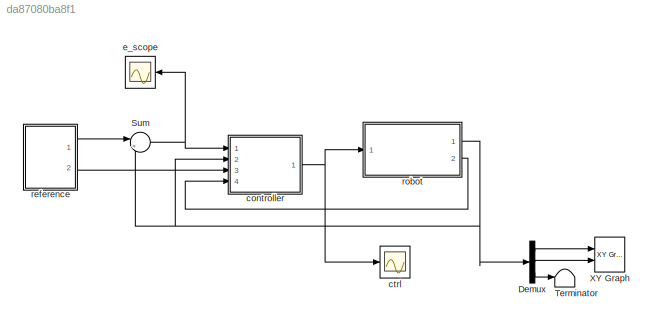
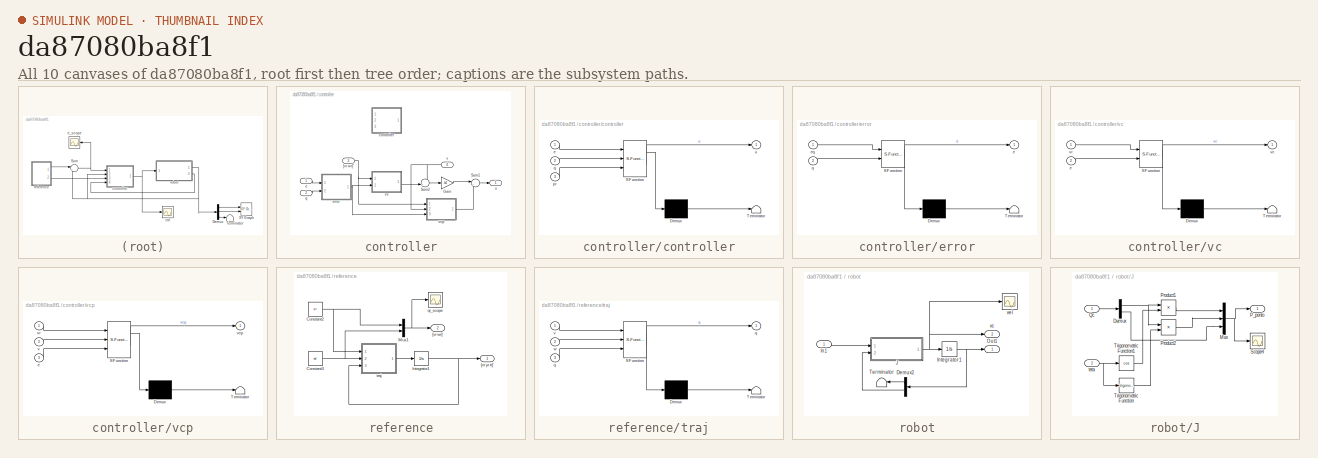
[diagram: thumbnail index - all 10 canvases of the model, root first then tree order]
MODEL slx_da87080ba8f1
KIND model
CONFIG AbsTol = auto
CONFIG EnableMultiTasking = on
CONFIG FixedStep = auto
CONFIG MaxStep = auto
CONFIG MinStep = auto
CONFIG RelTol = 1e-5
CONFIG SampleTimeConstraint = Unconstrained
CONFIG Solver = ode45
CONFIG SolverName = ode45
CONFIG StartTime = 0.0
CONFIG StopTime = 2
BLOCK [Demux] Demux
  DisplayOption = bar
  Outputs = 3
  Ports = [1, 3]
BLOCK [Sum] Sum
  AccumDataTypeStr = double
  IconShape = round
  InputSameDT = off
  Inputs = |+-
  OutDataTypeStr = Inherit: Inherit via internal rule
  Ports = [2, 1]
  SaturateOnIntegerOverflow = off
BLOCK [Terminator] Terminator
BLOCK [Reference] XY Graph  REF=simulink/Sinks/XY Graph
  Ports = [2]
  SourceBlock = simulink/Sinks/XY Graph
  SourceProductBaseCode = SL
  SourceProductName = Simulink
  SourceType = XY scope.
BLOCK [SubSystem] controller
  Ports = [4, 1]
  RequestExecContextInheritance = off
BLOCK [Gain] controller/Gain
  Gain = k4
  OutDataTypeStr = Inherit: Inherit via internal rule
  ParamDataTypeStr = Inherit: Inherit via internal rule
  SaturateOnIntegerOverflow = off
BLOCK [Sum] controller/Sum1
  AccumDataTypeStr = double
  IconShape = round
  InputSameDT = off
  Inputs = |++
  OutDataTypeStr = Inherit: Inherit via internal rule
  Ports = [2, 1]
  SaturateOnIntegerOverflow = off
BLOCK [Sum] controller/Sum2
  AccumDataTypeStr = double
  IconShape = round
  InputSameDT = off
  Inputs = -+|
  OutDataTypeStr = Inherit: Inherit via internal rule
  Ports = [2, 1]
  SaturateOnIntegerOverflow = off
BLOCK [Inport] controller/[vr wr]'
  IconDisplay = Port number
  Port = 3
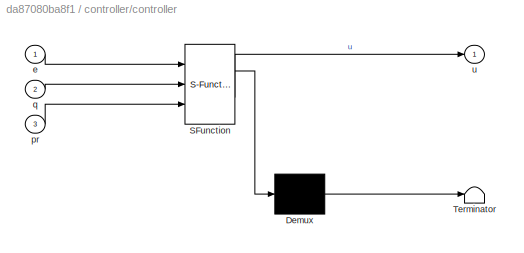
BLOCK [SubSystem] controller/controller
  Commented = on
  ErrorFcn = Stateflow.Translate.translate
  PermitHierarchicalResolution = ExplicitOnly
  Ports = [3, 1]
  RequestExecContextInheritance = off
  SFBlockType = MATLAB Function
  TreatAsAtomicUnit = on
BLOCK [Demux] controller/controller/ Demux 
  Outputs = 1
  Ports = [1, 1]
BLOCK [S-Function] controller/controller/ SFunction 
  EnableBusSupport = on
  FunctionName = sf_sfun
  Parameters = kt,kx,ky
  PortCounts = [3 2]
  Ports = [3, 2]
  SFcnIsStateOwnerBlock = off
  SFunctionDeploymentMode = off
  Tag = Stateflow S-Function KanKimMiy91_r2 4
BLOCK [Terminator] controller/controller/ Terminator 
BLOCK [Inport] controller/controller/e
  IconDisplay = Port number
BLOCK [Inport] controller/controller/pr
  IconDisplay = Port number
  Port = 3
BLOCK [Inport] controller/controller/q
  IconDisplay = Port number
  Port = 2
BLOCK [Outport] controller/controller/u
  IconDisplay = Port number
BLOCK [Inport] controller/e
  IconDisplay = Port number
BLOCK [SubSystem] controller/error
  ErrorFcn = Stateflow.Translate.translate
  PermitHierarchicalResolution = ExplicitOnly
  Ports = [2, 1]
  RequestExecContextInheritance = off
  SFBlockType = MATLAB Function
  TreatAsAtomicUnit = on
BLOCK [Demux] controller/error/ Demux 
  Outputs = 1
  Ports = [1, 1]
BLOCK [S-Function] controller/error/ SFunction 
  EnableBusSupport = on
  FunctionName = sf_sfun
  PortCounts = [2 2]
  Ports = [2, 2]
  SFcnIsStateOwnerBlock = off
  SFunctionDeploymentMode = off
  Tag = Stateflow S-Function KanKimMiy91_r2 2
BLOCK [Terminator] controller/error/ Terminator 
BLOCK [Outport] controller/error/e
  IconDisplay = Port number
BLOCK [Inport] controller/error/eq
  IconDisplay = Port number
BLOCK [Inport] controller/error/q
  IconDisplay = Port number
  Port = 2
BLOCK [Inport] controller/q
  IconDisplay = Port number
  Port = 2
BLOCK [Outport] controller/u
  IconDisplay = Port number
BLOCK [Inport] controller/v
  IconDisplay = Port number
  Port = 4
BLOCK [SubSystem] controller/vc
  ErrorFcn = Stateflow.Translate.translate
  PermitHierarchicalResolution = ExplicitOnly
  Ports = [2, 1]
  RequestExecContextInheritance = off
  SFBlockType = MATLAB Function
  TreatAsAtomicUnit = on
BLOCK [Demux] controller/vc/ Demux 
  Outputs = 1
  Ports = [1, 1]
BLOCK [S-Function] controller/vc/ SFunction 
  EnableBusSupport = on
  FunctionName = sf_sfun
  Parameters = kt,kx,ky
  PortCounts = [2 2]
  Ports = [2, 2]
  SFcnIsStateOwnerBlock = off
  SFunctionDeploymentMode = off
  Tag = Stateflow S-Function KanKimMiy91_r2 3
BLOCK [Terminator] controller/vc/ Terminator 
BLOCK [Inport] controller/vc/e
  IconDisplay = Port number
  Port = 2
BLOCK [Outport] controller/vc/vc
  IconDisplay = Port number
BLOCK [Inport] controller/vc/vr
  IconDisplay = Port number
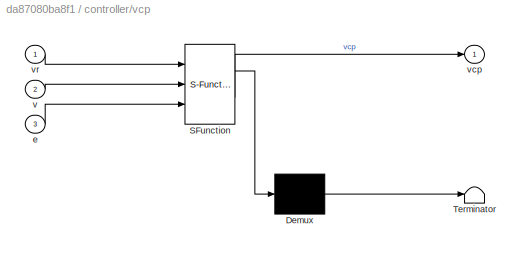
BLOCK [SubSystem] controller/vcp
  ErrorFcn = Stateflow.Translate.translate
  PermitHierarchicalResolution = ExplicitOnly
  Ports = [3, 1]
  RequestExecContextInheritance = off
  SFBlockType = MATLAB Function
  TreatAsAtomicUnit = on
BLOCK [Demux] controller/vcp/ Demux 
  Outputs = 1
  Ports = [1, 1]
BLOCK [S-Function] controller/vcp/ SFunction 
  EnableBusSupport = on
  FunctionName = sf_sfun
  Parameters = kt,kx,ky
  PortCounts = [3 2]
  Ports = [3, 2]
  SFcnIsStateOwnerBlock = off
  SFunctionDeploymentMode = off
  Tag = Stateflow S-Function KanKimMiy91_r2 5
BLOCK [Terminator] controller/vcp/ Terminator 
BLOCK [Inport] controller/vcp/e
  IconDisplay = Port number
  Port = 3
BLOCK [Inport] controller/vcp/v
  IconDisplay = Port number
  Port = 2
BLOCK [Outport] controller/vcp/vcp
  IconDisplay = Port number
BLOCK [Inport] controller/vcp/vr
  IconDisplay = Port number
BLOCK [Scope] ctrl
  Floating = off
  NumInputPorts = 1
  Ports = [1]
  ScopeSpecificationString = Simulink.scopes.TimeScopeBlockCfg('CurrentConfiguration', extmgr.ConfigurationSet(extmgr.Configuration('Core','General UI',true),extmgr.Configuration('Core','Source UI',true),extmgr.Configuration('Sources','WiredSimulink',true,'DataLogging',true,'DataLoggingVariableName','ctrl','DataLoggingSaveFormat','StructureWithTime','DataLoggingDecimation','1','DataLoggingDecimateData',true),extmgr.Configurat...<+1699ch>
BLOCK [Scope] e_scope
  Floating = off
  NumInputPorts = 1
  Ports = [1]
  ScopeSpecificationString = Simulink.scopes.TimeScopeBlockCfg('CurrentConfiguration', extmgr.ConfigurationSet(extmgr.Configuration('Core','General UI',true),extmgr.Configuration('Core','Source UI',true),extmgr.Configuration('Sources','WiredSimulink',true,'DataLogging',true,'DataLoggingVariableName','e','DataLoggingSaveFormat','StructureWithTime','DataLoggingDecimation','1','DataLoggingDecimateData',true),extmgr.Configuration...<+1649ch>
BLOCK [SubSystem] reference
  Ports = [0, 2]
  RequestExecContextInheritance = off
BLOCK [Constant] reference/Constant2
  Value = vr
  VectorParams1D = off
BLOCK [Constant] reference/Constant3
  Value = wr
  VectorParams1D = off
BLOCK [Integrator] reference/Integrator1
  InitialCondition = ini
  Ports = [1, 1]
BLOCK [Mux] reference/Mux1
  DisplayOption = bar
  Inputs = 2
  Ports = [2, 1]
BLOCK [Outport] reference/[vr wr]'
  IconDisplay = Port number
  Port = 2
BLOCK [Outport] reference/[xr yr tr]' 
  IconDisplay = Port number
BLOCK [Scope] reference/qr_scope
  Floating = off
  NumInputPorts = 1
  Ports = [1]
  ScopeSpecificationString = Simulink.scopes.TimeScopeBlockCfg('CurrentConfiguration', extmgr.ConfigurationSet(extmgr.Configuration('Core','General UI',true),extmgr.Configuration('Core','Source UI',true),extmgr.Configuration('Sources','WiredSimulink',true,'DataLogging',true,'DataLoggingVariableName','qr','DataLoggingSaveFormat','StructureWithTime','DataLoggingDecimation','1','DataLoggingDecimateData',true),extmgr.Configuratio...<+886ch>
BLOCK [SubSystem] reference/traj
  ErrorFcn = Stateflow.Translate.translate
  PermitHierarchicalResolution = ExplicitOnly
  Ports = [3, 1]
  RequestExecContextInheritance = off
  SFBlockType = MATLAB Function
  TreatAsAtomicUnit = on
BLOCK [Demux] reference/traj/ Demux 
  Outputs = 1
  Ports = [1, 1]
BLOCK [S-Function] reference/traj/ SFunction 
  EnableBusSupport = on
  FunctionName = sf_sfun
  PortCounts = [3 2]
  Ports = [3, 2]
  SFcnIsStateOwnerBlock = off
  SFunctionDeploymentMode = off
  Tag = Stateflow S-Function KanKimMiy91_r2 1
BLOCK [Terminator] reference/traj/ Terminator 
BLOCK [Outport] reference/traj/q
  IconDisplay = Port number
BLOCK [Inport] reference/traj/q 
  IconDisplay = Port number
  Port = 3
BLOCK [Inport] reference/traj/v
  IconDisplay = Port number
BLOCK [Inport] reference/traj/w
  IconDisplay = Port number
  Port = 2
BLOCK [SubSystem] robot
  Ports = [1, 2]
  RequestExecContextInheritance = off
BLOCK [Demux] robot/Demux2
  DisplayOption = bar
  Outputs = [2 1]
  Ports = [1, 2]
BLOCK [Inport] robot/In1
  IconDisplay = Port number
BLOCK [Integrator] robot/Integrator1
  InitialCondition = ini
  Ports = [1, 1]
BLOCK [SubSystem] robot/J
  Ports = [2, 1]
  RequestExecContextInheritance = off
BLOCK [Demux] robot/J/Demux
  DisplayOption = bar
  Outputs = 2
  Ports = [1, 2]
BLOCK [Mux] robot/J/Mux
  DisplayOption = bar
  Inputs = 3
  Ports = [3, 1]
BLOCK [Outport] robot/J/P_ponto
  IconDisplay = Port number
BLOCK [Product] robot/J/Product1
  InputSameDT = off
  OutDataTypeStr = Inherit: Inherit via internal rule
  Ports = [2, 1]
  RndMeth = Floor
  SaturateOnIntegerOverflow = off
BLOCK [Product] robot/J/Product2
  InputSameDT = off
  OutDataTypeStr = Inherit: Inherit via internal rule
  Ports = [2, 1]
  RndMeth = Floor
  SaturateOnIntegerOverflow = off
BLOCK [Inport] robot/J/Qc
  IconDisplay = Port number
BLOCK [Scope] robot/J/Scope4
  Floating = off
  NumInputPorts = 1
  Ports = [1]
  ScopeSpecificationString = Simulink.scopes.TimeScopeBlockCfg('CurrentConfiguration', extmgr.ConfigurationSet(extmgr.Configuration('Core','General UI',true),extmgr.Configuration('Core','Source UI',true),extmgr.Configuration('Sources','WiredSimulink',true,'DataLoggingVariableName','ScopeData3'),extmgr.Configuration('Visuals','Time Domain',true,'SerializedDisplays',{struct('MinYLimReal','-1.47994','MaxYLimReal','6.46801','YLab...<+1529ch>
BLOCK [Trigonometry] robot/J/Trigonometric Function
  Ports = [1, 1]
BLOCK [Trigonometry] robot/J/Trigonometric Function1
  Operator = cos
  Ports = [1, 1]
BLOCK [Inport] robot/J/teta
  IconDisplay = Port number
  Port = 2
BLOCK [Outport] robot/Out1
  IconDisplay = Port number
BLOCK [Terminator] robot/Terminator
BLOCK [Outport] robot/vc
  IconDisplay = Port number
  Port = 2
BLOCK [Scope] robot/vel
  Floating = off
  NumInputPorts = 1
  Ports = [1]
  ScopeSpecificationString = Simulink.scopes.TimeScopeBlockCfg('CurrentConfiguration', extmgr.ConfigurationSet(extmgr.Configuration('Core','General UI',true),extmgr.Configuration('Core','Source UI',true),extmgr.Configuration('Sources','WiredSimulink',true,'DataLogging',true,'DataLoggingVariableName','ctrl1','DataLoggingSaveFormat','StructureWithTime','DataLoggingDecimation','1','DataLoggingDecimateData',true),extmgr.Configura...<+1689ch>
LINE Demux:1 -> XY Graph:1
LINE Demux:2 -> XY Graph:2
LINE Demux:3 -> Terminator:1
NET Sum:1 -> controller:1, e_scope:1
LINE controller/Gain:1 -> controller/Sum1:1
LINE controller/Sum1:1 -> controller/u:1
LINE controller/Sum2:1 -> controller/Gain:1
NET controller/[vr wr]':1 -> controller/vc:1, controller/vcp:1
LINE controller/e:1 -> controller/error:1
NET controller/error:1 -> controller/vc:2, controller/vcp:3
LINE controller/q:1 -> controller/error:2
NET controller/v:1 -> controller/Sum2:1, controller/vcp:2
LINE controller/vc:1 -> controller/Sum2:2
LINE controller/vcp:1 -> controller/Sum1:2
NET controller:1 -> ctrl:1, robot:1
NET reference/Constant2:1 -> reference/Mux1:1, reference/traj:1
NET reference/Constant3:1 -> reference/Mux1:2, reference/traj:2
NET reference/Integrator1:1 -> reference/[xr yr tr]' :1, reference/traj:3
NET reference/Mux1:1 -> reference/[vr wr]':1, reference/qr_scope:1
LINE reference/traj:1 -> reference/Integrator1:1
LINE reference:1 -> Sum:1
LINE reference:2 -> controller:3
LINE robot/Demux2:1 -> robot/Terminator:1
LINE robot/Demux2:2 -> robot/J:2
LINE robot/In1:1 -> robot/J:1
NET robot/Integrator1:1 -> robot/Demux2:1, robot/Out1:1
NET robot/J/Demux:1 -> robot/J/Product1:1, robot/J/Product2:1
LINE robot/J/Demux:2 -> robot/J/Mux:3
NET robot/J/Mux:1 -> robot/J/P_ponto:1, robot/J/Scope4:1
LINE robot/J/Product1:1 -> robot/J/Mux:1
LINE robot/J/Product2:1 -> robot/J/Mux:2
LINE robot/J/Qc:1 -> robot/J/Demux:1
LINE robot/J/Trigonometric Function1:1 -> robot/J/Product1:2
LINE robot/J/Trigonometric Function:1 -> robot/J/Product2:2
NET robot/J/teta:1 -> robot/J/Trigonometric Function1:1, robot/J/Trigonometric Function:1
NET robot/J:1 -> robot/Integrator1:1, robot/vc:1, robot/vel:1
NET robot:1 -> Demux:1, Sum:2, controller:2
LINE robot:2 -> controller:4
note: NET lines group one-source signal fan-out (src -> all destinations, sorted); 1:1 wires keep LINE
CHART reference/traj states=1 transitions=1
  STATE_LABEL 'eML_blk_kernel()'
  STATE_LABEL 'SCRIPT:\nfunction q = fcn(v, w, q)\n\n q = [cos(q(3)) 0; sin(q(3)) 0; 0 1]*[v; w];\n \nend'
CHART controller/error states=1 transitions=1
  STATE_LABEL 'eML_blk_kernel()'
  STATE_LABEL 'SCRIPT:\nfunction e = fcn(eq,q)\n%#eml\n\n Te = [cos(q(3)) sin(q(3)) 0; -sin(q(3)) cos(q(3)) 0; 0 0 1];\n \n e = Te*eq;\n\nend'
CHART controller/vc states=1 transitions=1
  STATE_LABEL 'eML_blk_kernel()'
  STATE_LABEL 'SCRIPT:\nfunction vc = fcn(vr,e,kx,ky,kt)\n%#eml\n\n\n vc = [vr(1)*cos(e(3))+kx*e(1);vr(2)+ky*vr(1)*e(2)+kt*vr(1)*sin(e(3))];\n \nend'
CHART controller/controller states=1 transitions=1
  STATE_LABEL 'eML_blk_kernel()'
  STATE_LABEL "SCRIPT:\nfunction u = fcn(e,q,pr,kx,ky,kt)\n\n pe = [cos(q(3)) sin(q(3)) 0; -sin(q(3)) cos(q(3)) 0; 0 0 1]*e;\n\n u = [pr(1)*cos(pe(3))+kx*pe(1) pr(2)+pr(1)*(ky*pe(2)+kt*sin(pe(3)))]';\n \nend"
CHART controller/vcp states=1 transitions=1
  STATE_LABEL 'eML_blk_kernel()'
  STATE_LABEL 'SCRIPT:\nfunction vcp = fcn(vr,v,e,kx,ky,kt)\n%#eml\n\n ep = [v(2)*e(2)-v(1)+vr(1)*cos(e(3));-v(2)*e(1)+vr(1)*sin(e(3));vr(2)-v(2)];\n vcp = [kx 0 -vr(1)*sin(e(3)); 0 ky*vr(1) kt*vr(1)*cos(e(3))]*ep;\n \nend'
